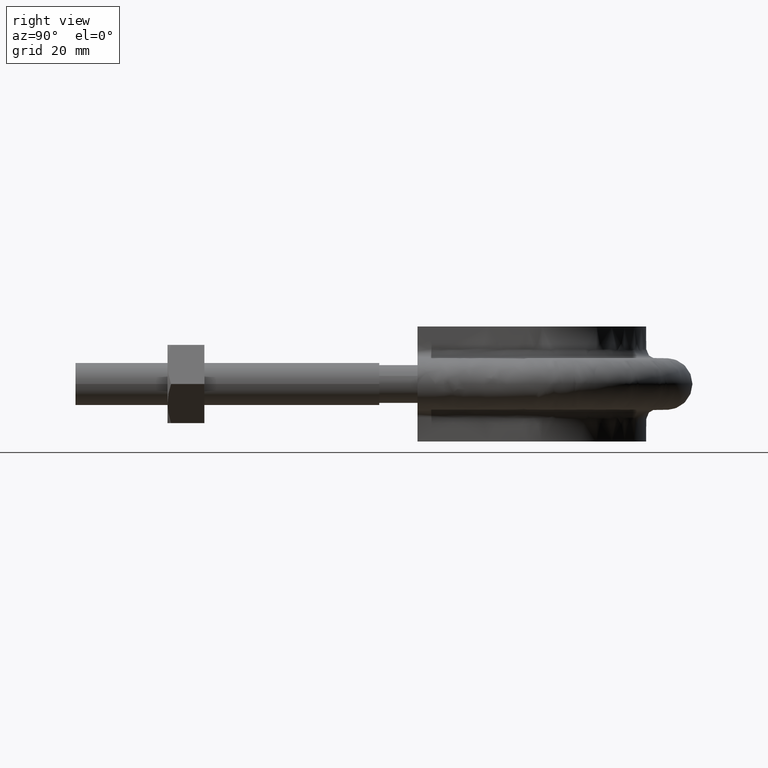
[diagram: clean part render]
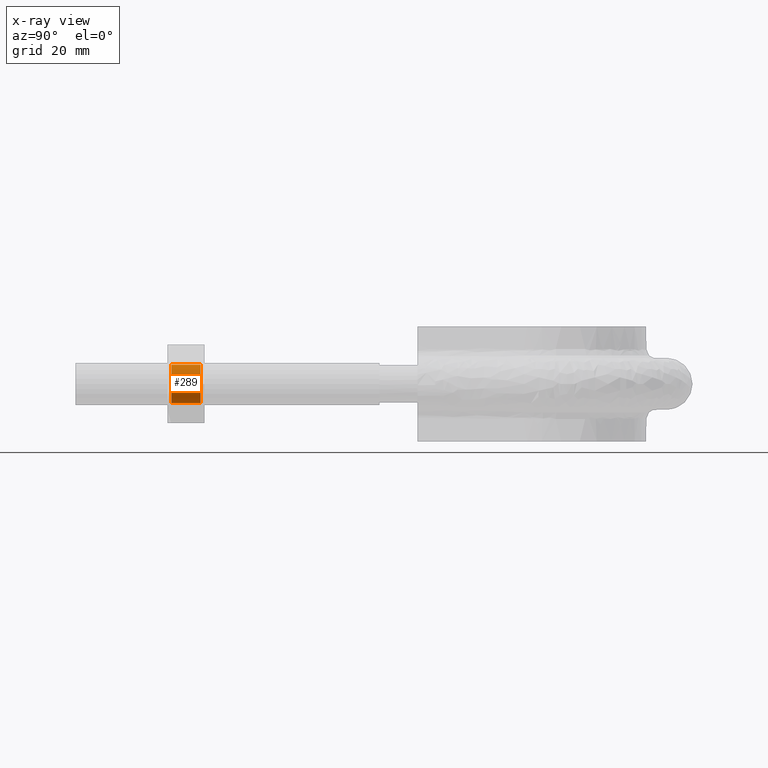
[diagram: x-ray — body ghosted, one internal face saturated and labeled with its STEP entity id]
A machine part, right view, then the same camera in x-ray: the body is ghosted and one INTERNAL B-rep face — a face not visible from any outside direction — is saturated and labeled: STEP entity #289.
In plain terms, the highlighted cylindrical surface (bore or boss wall) has radius 4.188 mm, axis along (0, 1, 0).
Its self-contained STEP definition (entity closure, byte-faithful):
#289 = ADVANCED_FACE( '', ( #454, #455 ), #456, .F. );
#454 = FACE_OUTER_BOUND( '', #1451, .T. );
#455 = FACE_OUTER_BOUND( '', #1452, .T. );
#456 = CYLINDRICAL_SURFACE( '', #1453, 4.18800000000000 );
#1451 = EDGE_LOOP( '', ( #1963 ) );
#1452 = EDGE_LOOP( '', ( #1964 ) );
#1453 = AXIS2_PLACEMENT_3D( '', #1965, #1966, #1967 );
#1963 = ORIENTED_EDGE( '', *, *, #2149, .F. );
#1964 = ORIENTED_EDGE( '', *, *, #2122, .T. );
#1965 = CARTESIAN_POINT( '', ( 31.0000000000000, 28.0000000000000, 1.16329472096832E-014 ) );
#1966 = DIRECTION( '', ( 2.44921270764476E-016, 1.00000000000000, 3.06151588455594E-016 ) );
#1967 = DIRECTION( '', ( -0.866025403784439, 3.65183836637000E-016, -0.500000000000000 ) );
#2122 = EDGE_CURVE( '', #2354, #2354, #2355, .T. );
#2149 = EDGE_CURVE( '', #2396, #2396, #2397, .F. );
#2354 = VERTEX_POINT( '', #2961 );
#2355 = CIRCLE( '', #2962, 4.18800000000000 );
#2396 = VERTEX_POINT( '', #3030 );
#2397 = CIRCLE( '', #3031, 4.18800000000000 );
#2961 = CARTESIAN_POINT( '', ( 31.0000000000000, 27.1880000000000, 4.18800000000001 ) );
#2962 = AXIS2_PLACEMENT_3D( '', #3229, #3230, #3231 );
#3030 = CARTESIAN_POINT( '', ( 31.0000000000000, 20.8120000000000, -4.18799999999999 ) );
#3031 = AXIS2_PLACEMENT_3D( '', #3277, #3278, #3279 );
#3229 = CARTESIAN_POINT( '', ( 31.0000000000000, 27.1880000000000, 1.13843521198573E-014 ) );
#3230 = DIRECTION( '', ( 2.44921270764475E-016, 1.00000000000000, 3.06151588455594E-016 ) );
#3231 = DIRECTION( '', ( 0.000000000000000, -3.06151588455594E-016, 1.00000000000000 ) );
#3277 = CARTESIAN_POINT( '', ( 31.0000000000000, 20.8120000000000, 9.43232959186441E-015 ) );
#3278 = DIRECTION( '', ( -2.44921270764476E-016, -1.00000000000000, -3.06151588455594E-016 ) );
#3279 = DIRECTION( '', ( 0.000000000000000, 3.06151588455594E-016, -1.00000000000000 ) );